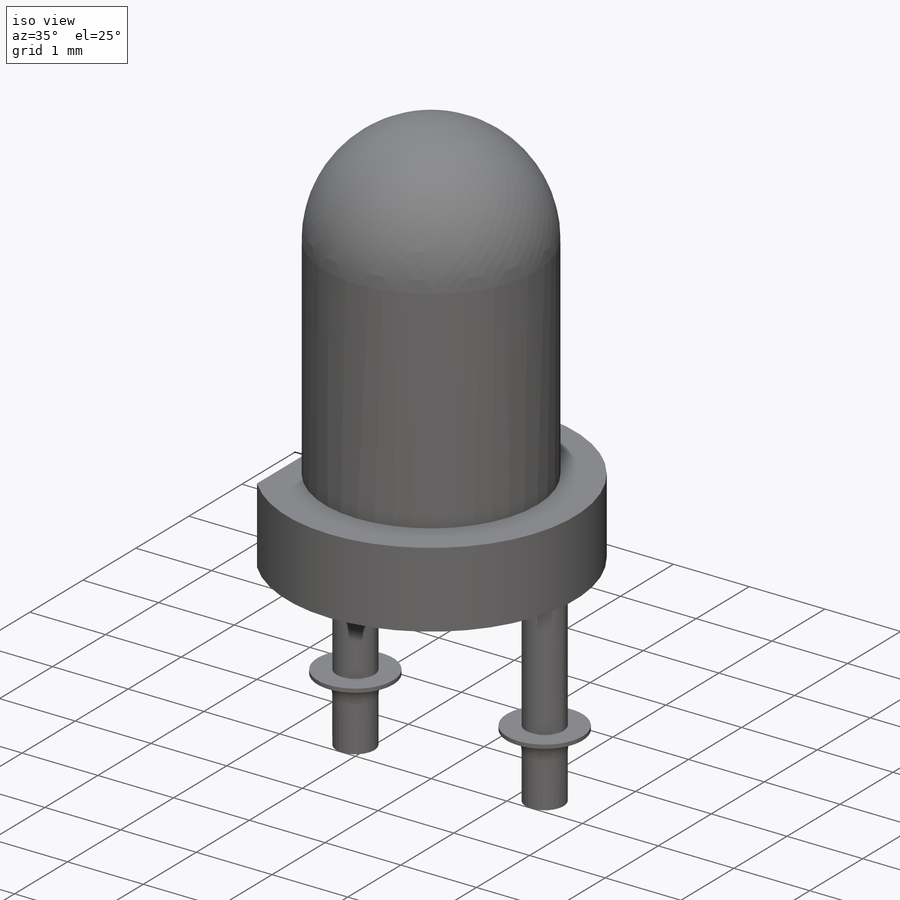
[diagram: iso view]
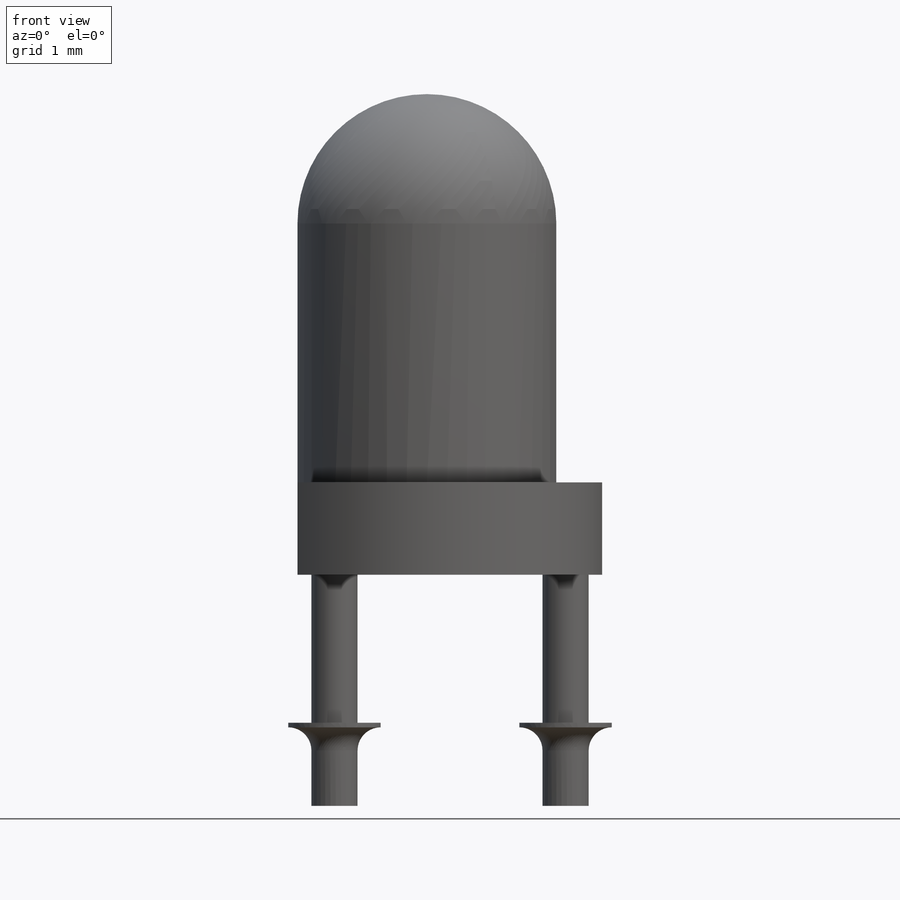
[diagram: front view]
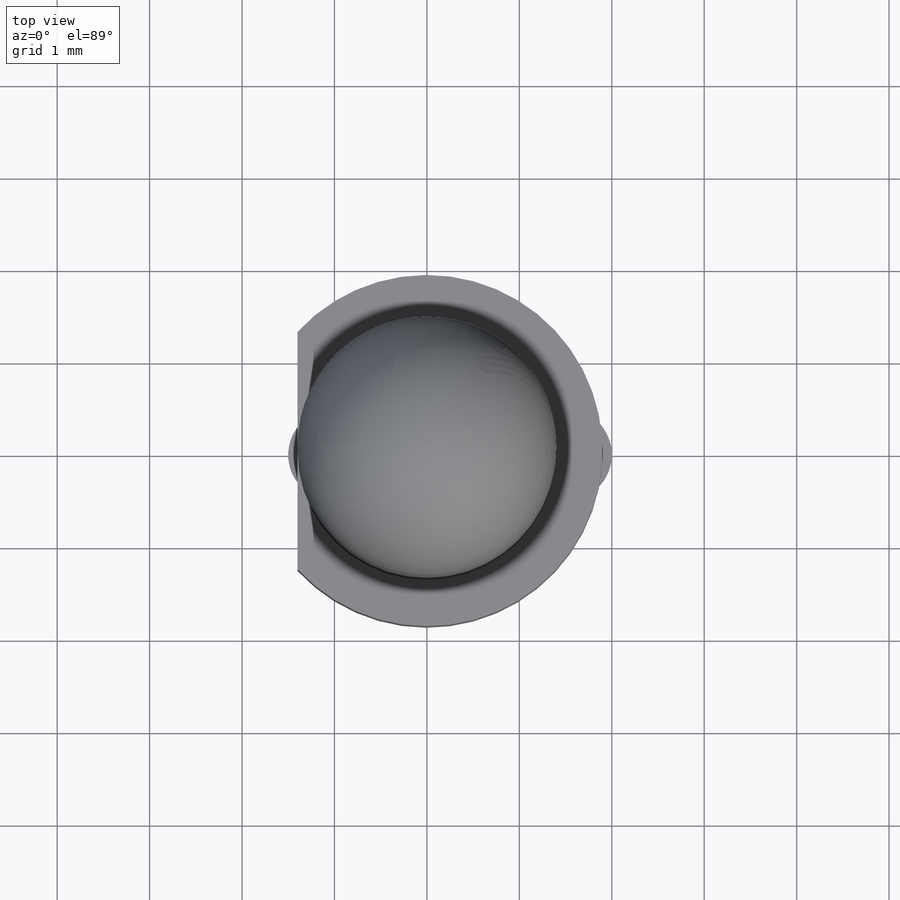
[diagram: top view]
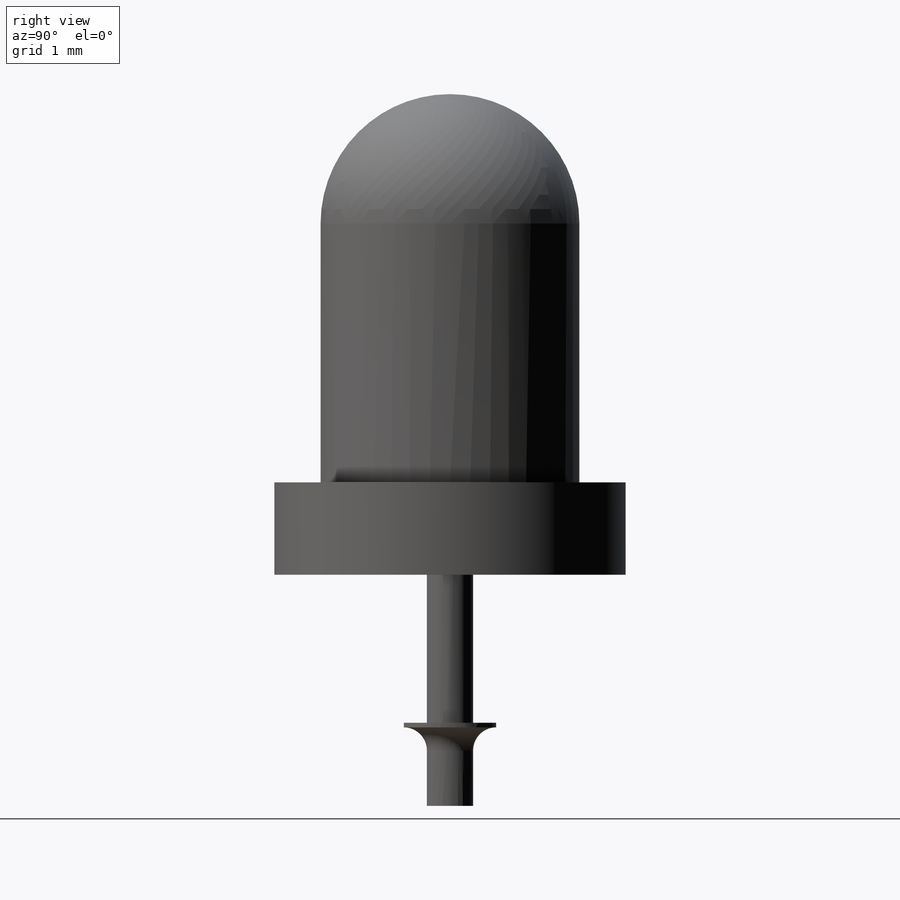
[diagram: right view]
SOLIDWORKS PART (.sldprt)
format: sldprt  version: not decoded by parser v0  size: 312,320 bytes
history: native  units: mm
features: sketch x5, plane x4, extrude x3, material x1, revolve x1, cut_extrude x1, fillet x1, shell x1, pattern_linear x1 (+8 scaffold rows collapsed)
feature tree (26):
  scaffold x8  (default folders/planes/origin — collapsed)
  material  "Matériau <non spécifié>"
  plane  "Plan de face"
  plane  "Plan de dessus"
  plane  "Plan de droite"
  sketch  "Esquisse1"  dims[c1.D1=~0.239369mm c1.D2=1.9mm c1.D3=5.2mm c2.D1=~7.075042mm c2.D4=1.0mm]
  revolve  "Révolution2"  Angle=360deg
  sketch  "Esquisse2"  dims[c1.D1=~6.793034mm c1.D2=~2.25835mm c2.D1=1.0mm c2.D2=0.5mm]
  cut_extrude  "Enlèv. mat.-Extru.1"  Depth=10mm
  sketch  "Esquisse3"  dims[c1.D1=2.5mm c1.D2=1.0mm c2.D1=2.5mm]
  extrude  "Boss.-Extru.2"  Depth=2.5mm
  plane  "Plan1"  Offset=1.6mm
  sketch  "Esquisse4"  dims[D1=~0.481722mm]
  extrude  "Boss.-Extru.3"  Depth=0.05mm
  fillet  "Congé1"  Radius=0.25mm
  sketch  "Esquisse5"  dims[D1=~2.422347mm]
  extrude  "Boss.-Extru.4"  Depth=0.2mm
  shell  "Coque3"  Thickness=0.01mm
  pattern_linear  "Répétition linéaire2"  Count1=2 Count2=1 Spacing1=2.5mm Spacing2=10mm
decode coverage: 13 of 13 modeling features carry decoded parameters
note: ~ marks probable driven/reference dimensions
note: suppression state not decoded; provenance and decode notes live in map.json
